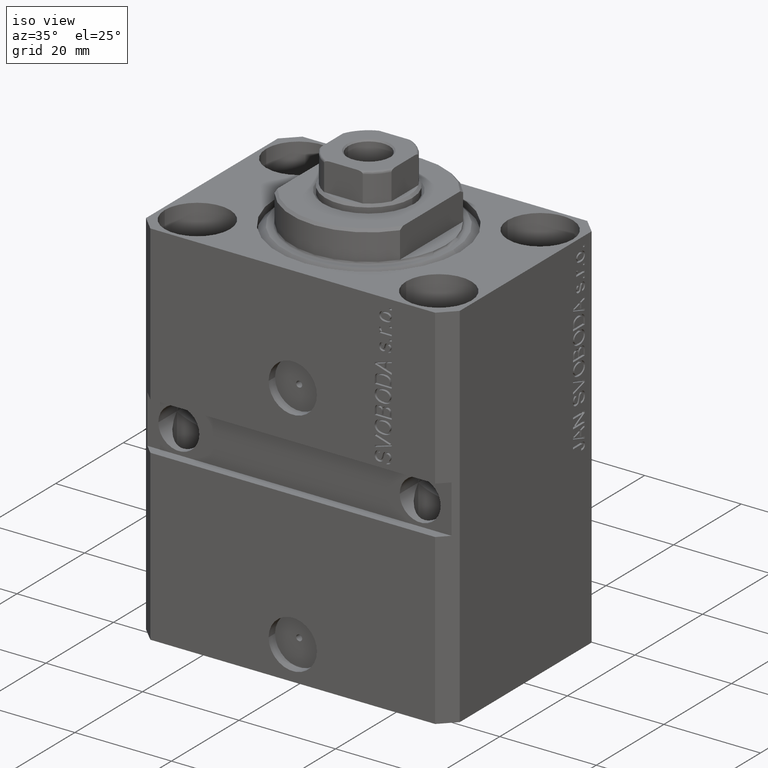
[diagram: clean part render]
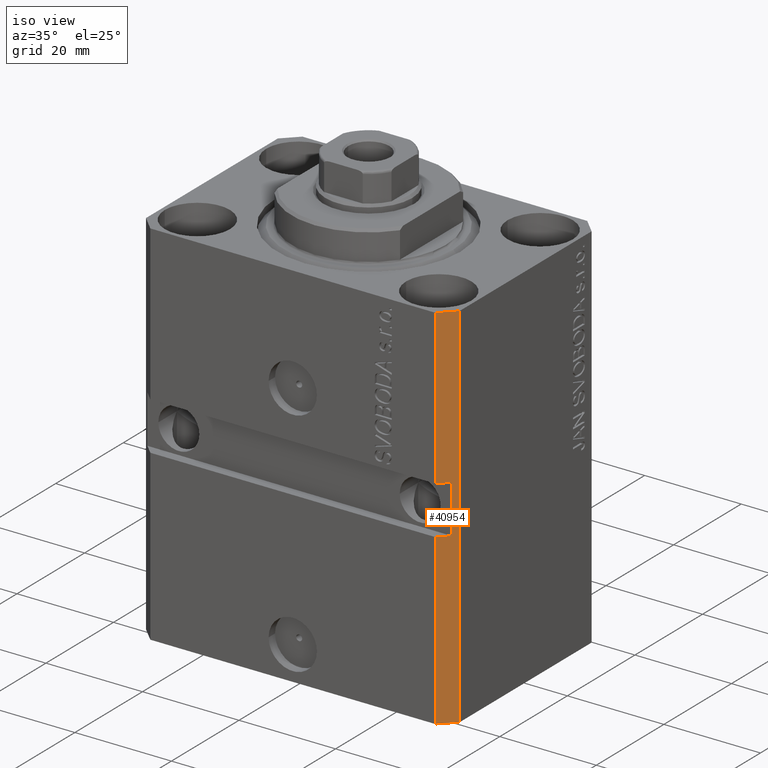
[diagram: same view with one face highlighted and labeled with its STEP entity id]
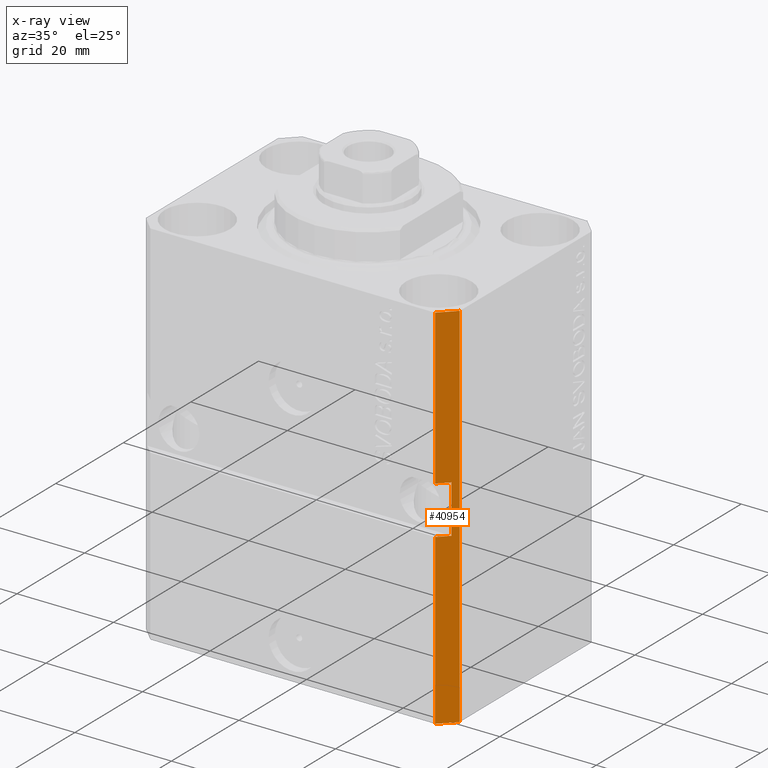
[diagram: x-ray of the same camera — body ghosted, the highlighted face saturated]
A machine part, iso view. The second image highlights one B-rep face of the part: STEP entity #40954.
The next image is the same camera in x-ray: the body ghosted, the highlighted face saturated — about 0% of this face is hidden behind the body in this view.
In plain terms, the highlighted planar face has unit normal (0.7071, -0.7071, 0).
Its self-contained STEP definition (entity closure, byte-faithful):
#1439 = ORIENTED_EDGE ( 'NONE', *, *, #37882, .F. ) ;
#1687 = CARTESIAN_POINT ( 'NONE',  ( 29.49999999999650413, -22.49999999999949196, -77.00000000000000000 ) ) ;
#3099 = DIRECTION ( 'NONE',  ( 0.7071067811865483499, 0.7071067811865466846, 0.000000000000000000 ) ) ;
#3480 = EDGE_CURVE ( 'NONE', #11908, #34159, #38402, .T. ) ;
#3543 = EDGE_CURVE ( 'NONE', #12431, #41218, #12657, .T. ) ;
#5880 = ORIENTED_EDGE ( 'NONE', *, *, #38571, .T. ) ;
#6355 = CARTESIAN_POINT ( 'NONE',  ( 32.49999999999651124, -19.49999999999949196, -77.00000000000000000 ) ) ;
#6371 = VECTOR ( 'NONE', #34113, 1000.000000000000000 ) ;
#6912 = CARTESIAN_POINT ( 'NONE',  ( 29.49999999999650413, -22.49999999999949196, -77.00000000000000000 ) ) ;
#8644 = CARTESIAN_POINT ( 'NONE',  ( 29.49999999999650413, -22.49999999999949196, -77.00000000000000000 ) ) ;
#9174 = CARTESIAN_POINT ( 'NONE',  ( 29.49999999999650413, -22.49999999999949196, -77.00000000000000000 ) ) ;
#11368 = VECTOR ( 'NONE', #25881, 1000.000000000000000 ) ;
#11908 = VERTEX_POINT ( 'NONE', #9174 ) ;
#12431 = VERTEX_POINT ( 'NONE', #40811 ) ;
#12456 = VECTOR ( 'NONE', #23360, 1000.000000000000000 ) ;
#12657 = LINE ( 'NONE', #27191, #12456 ) ;
#13894 = CARTESIAN_POINT ( 'NONE',  ( 32.49999999999651124, -19.49999999999949196, 0.000000000000000000 ) ) ;
#14104 = ORIENTED_EDGE ( 'NONE', *, *, #32334, .F. ) ;
#14770 = FACE_OUTER_BOUND ( 'NONE', #32992, .T. ) ;
#15397 = LINE ( 'NONE', #22075, #11368 ) ;
#15424 = VERTEX_POINT ( 'NONE', #37253 ) ;
#17305 = EDGE_CURVE ( 'NONE', #44600, #28132, #15397, .T. ) ;
#18483 = DIRECTION ( 'NONE',  ( 0.7071067811865483499, 0.7071067811865466846, 7.548521435980509068E-17 ) ) ;
#18612 = DIRECTION ( 'NONE',  ( -0.7071067811865483499, -0.7071067811865466846, 7.548521435980509068E-17 ) ) ;
#20058 = LINE ( 'NONE', #8644, #33087 ) ;
#20126 = ORIENTED_EDGE ( 'NONE', *, *, #17305, .F. ) ;
#21069 = AXIS2_PLACEMENT_3D ( 'NONE', #6912, #25250, #3099 ) ;
#21583 = CARTESIAN_POINT ( 'NONE',  ( 29.49999999999650058, -22.49999999999949551, -41.99999999999998579 ) ) ;
#21673 = PLANE ( 'NONE',  #21069 ) ;
#21950 = LINE ( 'NONE', #44596, #25876 ) ;
#22075 = CARTESIAN_POINT ( 'NONE',  ( 29.49999999999650413, -22.49999999999949196, 0.000000000000000000 ) ) ;
#23004 = VECTOR ( 'NONE', #42623, 1000.000000000000000 ) ;
#23155 = EDGE_CURVE ( 'NONE', #12431, #37086, #21950, .T. ) ;
#23360 = DIRECTION ( 'NONE',  ( 0.000000000000000000, 0.000000000000000000, -1.000000000000000000 ) ) ;
#23618 = DIRECTION ( 'NONE',  ( 0.000000000000000000, 0.000000000000000000, 1.000000000000000000 ) ) ;
#23817 = CARTESIAN_POINT ( 'NONE',  ( 32.49999999999651124, -19.49999999999949196, -77.00000000000000000 ) ) ;
#24206 = DIRECTION ( 'NONE',  ( 0.000000000000000000, 0.000000000000000000, 1.000000000000000000 ) ) ;
#25250 = DIRECTION ( 'NONE',  ( 0.7071067811865466846, -0.7071067811865483499, 0.000000000000000000 ) ) ;
#25876 = VECTOR ( 'NONE', #18612, 1000.000000000000000 ) ;
#25881 = DIRECTION ( 'NONE',  ( 0.7071067811865483499, 0.7071067811865466846, 0.000000000000000000 ) ) ;
#27191 = CARTESIAN_POINT ( 'NONE',  ( 31.49999999999651124, -20.49999999999949551, -77.00000000000000000 ) ) ;
#28072 = LINE ( 'NONE', #32110, #23004 ) ;
#28132 = VERTEX_POINT ( 'NONE', #13894 ) ;
#28211 = ORIENTED_EDGE ( 'NONE', *, *, #23155, .F. ) ;
#28518 = EDGE_CURVE ( 'NONE', #37086, #44600, #28072, .T. ) ;
#32110 = CARTESIAN_POINT ( 'NONE',  ( 29.49999999999650413, -22.49999999999949196, -77.00000000000000000 ) ) ;
#32334 = EDGE_CURVE ( 'NONE', #15424, #41218, #43992, .T. ) ;
#32989 = ORIENTED_EDGE ( 'NONE', *, *, #3480, .T. ) ;
#32992 = EDGE_LOOP ( 'NONE', ( #14104, #1439, #32989, #5880, #20126, #46847, #28211, #36543 ) ) ;
#33087 = VECTOR ( 'NONE', #23618, 1000.000000000000000 ) ;
#34113 = DIRECTION ( 'NONE',  ( 0.7071067811865483499, 0.7071067811865466846, 0.000000000000000000 ) ) ;
#34159 = VERTEX_POINT ( 'NONE', #23817 ) ;
#35581 = CARTESIAN_POINT ( 'NONE',  ( 31.49999999999650413, -20.49999999999949196, -41.99999999999998579 ) ) ;
#36163 = VECTOR ( 'NONE', #24206, 1000.000000000000000 ) ;
#36543 = ORIENTED_EDGE ( 'NONE', *, *, #3543, .T. ) ;
#37086 = VERTEX_POINT ( 'NONE', #39860 ) ;
#37253 = CARTESIAN_POINT ( 'NONE',  ( 29.49999999999650058, -22.49999999999949196, -41.99999999999998579 ) ) ;
#37882 = EDGE_CURVE ( 'NONE', #11908, #15424, #20058, .T. ) ;
#38402 = LINE ( 'NONE', #1687, #6371 ) ;
#38571 = EDGE_CURVE ( 'NONE', #34159, #28132, #45692, .T. ) ;
#39860 = CARTESIAN_POINT ( 'NONE',  ( 29.49999999999650413, -22.49999999999949196, -32.00000000000000711 ) ) ;
#40441 = CARTESIAN_POINT ( 'NONE',  ( 29.49999999999650413, -22.49999999999949196, 0.000000000000000000 ) ) ;
#40811 = CARTESIAN_POINT ( 'NONE',  ( 31.49999999999651124, -20.49999999999949196, -32.00000000000000711 ) ) ;
#40954 = ADVANCED_FACE ( 'NONE', ( #14770 ), #21673, .T. ) ;
#41218 = VERTEX_POINT ( 'NONE', #35581 ) ;
#42623 = DIRECTION ( 'NONE',  ( 0.000000000000000000, 0.000000000000000000, 1.000000000000000000 ) ) ;
#43992 = LINE ( 'NONE', #21583, #44356 ) ;
#44356 = VECTOR ( 'NONE', #18483, 1000.000000000000000 ) ;
#44596 = CARTESIAN_POINT ( 'NONE',  ( 29.49999999999650768, -22.49999999999948841, -32.00000000000000711 ) ) ;
#44600 = VERTEX_POINT ( 'NONE', #40441 ) ;
#45692 = LINE ( 'NONE', #6355, #36163 ) ;
#46847 = ORIENTED_EDGE ( 'NONE', *, *, #28518, .F. ) ;